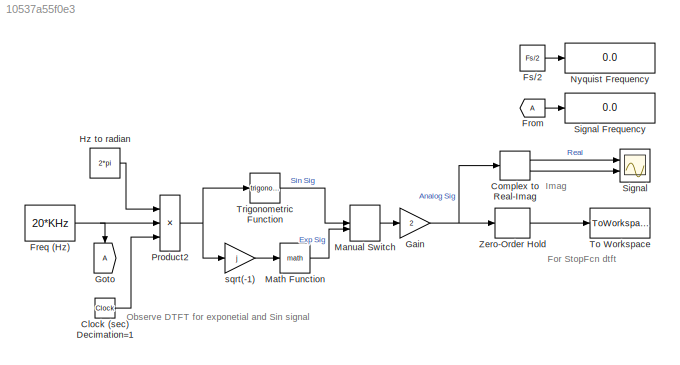
MODEL slx_10537a55f0e3
KIND model
CONFIG InitFcn = clear all\nclc\n\nms=1e-3;\nKHz=1e3;\n\nTs=0.01*ms;\nFs=1/Ts;\n\n%If not previously done create figures for DTFT plots\nif ~ishandle(1)\n     figure(1)\n     set(1,'Position', [150 550 500 350]);\nend\nif ~ishandle(2)\n    figure(2)\n    set(2,'Position', [150 110 500 350]);\nend
CONFIG PreLoadFcn = close all
CONFIG StopFcn = n=[0:length(simout)-1];\nw=[-500:500]*pi/500;\nX=dtft(simout,n,w);\nmagX=abs(X);\n%magX=magX/max(magX);\nTotalTime=tout(end);\nN=TotalTime*Fs;\nmagX=magX/N;\n\nfigure(1)\nplot((w/pi),magX,'LineWidth',2)\ngrid on\nset(gca,'ylim',[0 2],'Xtick',[-1:.2: 1])\nxlabel(' \omega/\pi, Nyquist Normalized Frequency (Samples per Half Cycle)');\nylabel('magntidue(dtft)')\n\nfigure(2)\nplot(w*Fs/(2*pi*KHz),magX,'LineWidth',2)\ngr...<+91ch>
BLOCK [Scope]  Signal
  DataFormat = StructureWithTime
  Floating = off
  LimitDataPoints = off
  NumInputPorts = 2
  Ports = [2]
  SampleTime = 0
  SaveName = ScopeData1
  ShowLegends = off
  TimeRange = 0.0006
  YMax = 4~4
  YMin = -4~-4
  ZoomMode = xonly
BLOCK [Clock] Clock (sec) Decimation=1
  Decimation = 1
BLOCK [ComplexToRealImag] Complex to Real-Imag
  Ports = [1, 2]
BLOCK [Constant] Freq (Hz)
  Value = 20*KHz
BLOCK [From] From
BLOCK [Constant] Fs//2
  Value = Fs/2
BLOCK [Gain] Gain
  Gain = 2
  OutDataTypeStr = Inherit: Inherit via internal rule
  ParamDataTypeStr = Inherit: Inherit via internal rule
  SaturateOnIntegerOverflow = off
BLOCK [Goto] Goto
BLOCK [Constant] Hz to radian 
  Value = 2*pi
BLOCK [ManualSwitch] Manual Switch
  CurrentSetting = 0
BLOCK [Math] Math Function
  Ports = [1, 1]
BLOCK [Display] Nyquist Frequency
  Decimation = 1
  Ports = [1]
BLOCK [Product] Product2
  InputSameDT = off
  Inputs = 3
  OutDataTypeStr = Inherit: Inherit via internal rule
  Ports = [3, 1]
  SaturateOnIntegerOverflow = off
BLOCK [Display] Signal Frequency
  Decimation = 1
  Ports = [1]
BLOCK [ToWorkspace] To Workspace
  MaxDataPoints = inf
  Ports = [1]
  SampleTime = -1
  VariableName = simout
BLOCK [Trigonometry] Trigonometric Function
  OutputSignalType = complex
  Ports = [1, 1]
BLOCK [ZeroOrderHold] Zero-Order Hold
  SampleTime = Ts
BLOCK [Gain] sqrt(-1)
  Gain = j
  OutDataTypeStr = Inherit: Inherit via internal rule
  ParamDataTypeStr = Inherit: Inherit via internal rule
  SaturateOnIntegerOverflow = off
ANNOTATION (root): For StopFcn dtft
ANNOTATION (root): Imag
ANNOTATION (root): Observe DTFT for exponetial and Sin signal
LINE Clock (sec) Decimation=1:1 -> Product2:3
LINE Complex to Real-Imag:1 ->  Signal:1
LINE Complex to Real-Imag:2 ->  Signal:2
NET Freq (Hz):1 -> Goto:1, Product2:2
LINE From:1 -> Signal Frequency:1
LINE Fs//2:1 -> Nyquist Frequency:1
NET Gain:1 -> Complex to Real-Imag:1, Zero-Order Hold:1
LINE Hz to radian :1 -> Product2:1
LINE Manual Switch:1 -> Gain:1
LINE Math Function:1 -> Manual Switch:2
NET Product2:1 -> Trigonometric Function:1, sqrt(-1):1
LINE Trigonometric Function:1 -> Manual Switch:1
LINE Zero-Order Hold:1 -> To Workspace:1
LINE sqrt(-1):1 -> Math Function:1
note: NET lines group one-source signal fan-out (src -> all destinations, sorted); 1:1 wires keep LINE
